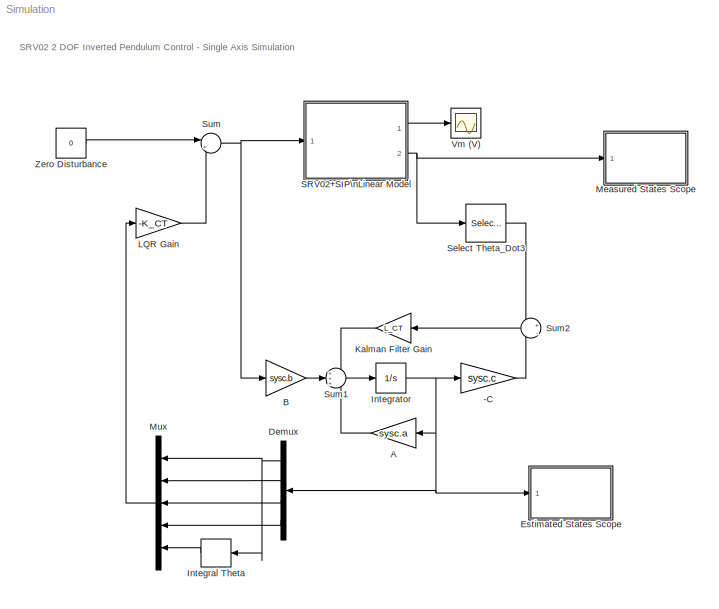
MODEL Simulation
KIND model
BLOCK [Gain] -C
  Gain = sysc.c
  Multiplication = Matrix(K*u)
  OutDataTypeStr = Inherit: Inherit via internal rule
  ParamDataTypeStr = Inherit: Inherit via internal rule
  SID = 34
  SaturateOnIntegerOverflow = off
BLOCK [Gain] A
  Gain = sysc.a
  Multiplication = Matrix(K*u)
  OutDataTypeStr = Inherit: Inherit via internal rule
  ParamDataTypeStr = Inherit: Inherit via internal rule
  SID = 35
  SaturateOnIntegerOverflow = off
BLOCK [Gain] B
  Gain = sysc.b
  Multiplication = Matrix(K*u)
  OutDataTypeStr = Inherit: Inherit via internal rule
  ParamDataTypeStr = Inherit: Inherit via internal rule
  SID = 36
  SaturateOnIntegerOverflow = off
BLOCK [Demux] Demux
  DisplayOption = bar
  Ports = [1, 4]
  SID = 242
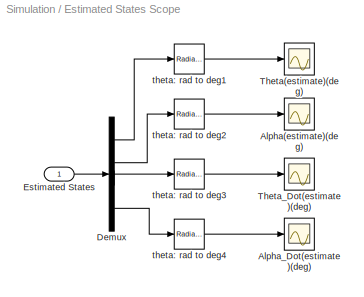
BLOCK [SubSystem] Estimated States Scope
  Ports = [1]
  RequestExecContextInheritance = off
  SID = 212
BLOCK [Scope] Estimated States Scope/Alpha(estimate)(deg)
  Floating = off
  NumInputPorts = 1
  Ports = [1]
  SID = 57
  ScopeSpecificationString = Simulink.scopes.TimeScopeBlockCfg('CurrentConfiguration', extmgr.ConfigurationSet(extmgr.Configuration('Core','General UI',true),extmgr.Configuration('Core','Source UI',true),extmgr.Configuration('Sources','WiredSimulink',true,'DataLoggingVariableName','data_alpha3','DataLoggingSaveFormat','Array','DataLoggingDecimation','1','DataLoggingDecimateData',true),extmgr.Configuration('Visuals','Time Doma...<+2647ch>
BLOCK [Scope] Estimated States Scope/Alpha_Dot(estimate)(deg)
  Floating = off
  NumInputPorts = 1
  Ports = [1]
  SID = 65
  ScopeSpecificationString = C++SS(StrPVP('Open','off'),StrPVP('TimeRange','5'),StrPVP('TickLabels','OneTimeTick'),StrPVP('LimitDataPoints','off'),StrPVP('MaxDataPoints','5000'),StrPVP('SaveToWorkspace','off'),StrPVP('SaveName','data_alpha'),StrPVP('YMin','-962986.15119'),StrPVP('YMax','8666875.3607'),StrPVP('BlockParamSampleInput','off'),StrPVP('BlockParamSampleTime','-1'),StrPVP('ZoomMode','on'),StrPVP('Grid','on'),StrPVP('...<+147ch>
BLOCK [Demux] Estimated States Scope/Demux
  DisplayOption = bar
  Ports = [1, 4]
  SID = 195
BLOCK [Inport] Estimated States Scope/Estimated States
  IconDisplay = Port number
  SID = 213
BLOCK [Scope] Estimated States Scope/Theta(estimate)(deg)
  Floating = off
  NumInputPorts = 1
  Ports = [1]
  SID = 61
  ScopeSpecificationString = Simulink.scopes.TimeScopeBlockCfg('CurrentConfiguration', extmgr.ConfigurationSet(extmgr.Configuration('Core','General UI',true),extmgr.Configuration('Core','Source UI',true),extmgr.Configuration('Sources','WiredSimulink',true,'DataLoggingVariableName','data_theta2','DataLoggingSaveFormat','Array','DataLoggingDecimation','1','DataLoggingDecimateData',true),extmgr.Configuration('Visuals','Time Doma...<+2661ch>
BLOCK [Scope] Estimated States Scope/Theta_Dot(estimate)(deg)
  Floating = off
  NumInputPorts = 1
  Ports = [1]
  SID = 60
  ScopeSpecificationString = Simulink.scopes.TimeScopeBlockCfg('CurrentConfiguration', extmgr.ConfigurationSet(extmgr.Configuration('Core','General UI',true),extmgr.Configuration('Core','Source UI',true),extmgr.Configuration('Sources','WiredSimulink',true,'DataLoggingVariableName','data_alpha4','DataLoggingSaveFormat','Array','DataLoggingDecimation','1','DataLoggingDecimateData',true),extmgr.Configuration('Visuals','Time Doma...<+2443ch>
BLOCK [Reference] Estimated States Scope/theta: rad to deg1  REF=simulink_extras/Transformations/Radians\nto Degrees
  Ports = [1, 1]
  SID = 196
  SourceBlock = simulink_extras/Transformations/Radians\nto Degrees
  SourceProductBaseCode = SL
  SourceProductName = Simulink
  SourceType = RadiansToDegrees
BLOCK [Reference] Estimated States Scope/theta: rad to deg2  REF=simulink_extras/Transformations/Radians\nto Degrees
  Ports = [1, 1]
  SID = 197
  SourceBlock = simulink_extras/Transformations/Radians\nto Degrees
  SourceProductBaseCode = SL
  SourceProductName = Simulink
  SourceType = RadiansToDegrees
BLOCK [Reference] Estimated States Scope/theta: rad to deg3  REF=simulink_extras/Transformations/Radians\nto Degrees
  Ports = [1, 1]
  SID = 198
  SourceBlock = simulink_extras/Transformations/Radians\nto Degrees
  SourceProductBaseCode = SL
  SourceProductName = Simulink
  SourceType = RadiansToDegrees
BLOCK [Reference] Estimated States Scope/theta: rad to deg4  REF=simulink_extras/Transformations/Radians\nto Degrees
  Ports = [1, 1]
  SID = 199
  SourceBlock = simulink_extras/Transformations/Radians\nto Degrees
  SourceProductBaseCode = SL
  SourceProductName = Simulink
  SourceType = RadiansToDegrees
BLOCK [DiscreteIntegrator] Integral Theta
  ICPrevOutput = DiscIntNeverNeededParam
  ICPrevScaledInput = DiscIntNeverNeededParam
  Ports = [1, 1]
  SID = 243
  SampleTime = 0.002
BLOCK [Integrator] Integrator
  Ports = [1, 1]
  SID = 94
BLOCK [Gain] Kalman Filter Gain
  Gain = L_CT
  Multiplication = Matrix(K*u)
  OutDataTypeStr = Inherit: Inherit via internal rule
  ParamDataTypeStr = Inherit: Inherit via internal rule
  SID = 38
  SaturateOnIntegerOverflow = off
BLOCK [Gain] LQR Gain
  Gain = -K_CT
  Multiplication = Matrix(K*u)
  SID = 1
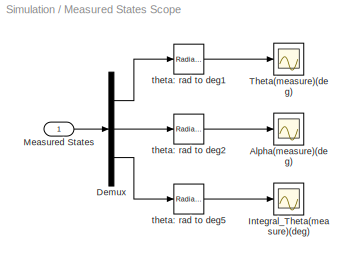
BLOCK [SubSystem] Measured States Scope
  Ports = [1]
  RequestExecContextInheritance = off
  SID = 214
BLOCK [Scope] Measured States Scope/Alpha(measure)(deg)
  Floating = off
  NumInputPorts = 1
  Ports = [1]
  SID = 218
  ScopeSpecificationString = C++SS(StrPVP('Open','off'),StrPVP('TimeRange','5'),StrPVP('TickLabels','OneTimeTick'),StrPVP('LimitDataPoints','off'),StrPVP('MaxDataPoints','5000'),StrPVP('SaveToWorkspace','off'),StrPVP('SaveName','data_alpha3'),StrPVP('YMin','0.000000211'),StrPVP('YMax','0.000000279'),StrPVP('BlockParamSampleInput','off'),StrPVP('BlockParamSampleTime','-1'),StrPVP('ZoomMode','on'),StrPVP('Grid','on'),StrPVP('Da...<+146ch>
BLOCK [Demux] Measured States Scope/Demux
  DisplayOption = bar
  Outputs = 3
  Ports = [1, 3]
  SID = 216
BLOCK [Scope] Measured States Scope/Integral_Theta(measure)(deg)
  Floating = off
  NumInputPorts = 1
  Ports = [1]
  SID = 219
  ScopeSpecificationString = C++SS(StrPVP('Open','off'),StrPVP('TimeRange','5'),StrPVP('TickLabels','OneTimeTick'),StrPVP('LimitDataPoints','off'),StrPVP('MaxDataPoints','5000'),StrPVP('SaveToWorkspace','off'),StrPVP('SaveName','data_alpha2'),StrPVP('YMin','0.18213'),StrPVP('YMax','0.24097'),StrPVP('BlockParamSampleInput','off'),StrPVP('BlockParamSampleTime','-1'),StrPVP('ZoomMode','on'),StrPVP('Grid','on'),StrPVP('DataFormat...<+139ch>
BLOCK [Inport] Measured States Scope/Measured States
  IconDisplay = Port number
  SID = 215
BLOCK [Scope] Measured States Scope/Theta(measure)(deg)
  Floating = off
  NumInputPorts = 1
  Ports = [1]
  SID = 226
  ScopeSpecificationString = C++SS(StrPVP('Open','off'),StrPVP('TimeRange','50              '),StrPVP('TickLabels','OneTimeTick'),StrPVP('LimitDataPoints','off'),StrPVP('MaxDataPoints','5000'),StrPVP('SaveToWorkspace','off'),StrPVP('SaveName','data_theta2'),StrPVP('YMin','-20.93974'),StrPVP('YMax','15.53818'),StrPVP('BlockParamSampleInput','off'),StrPVP('BlockParamSampleTime','-1'),StrPVP('ZoomMode','on'),StrPVP('Grid','on'),...<+157ch>
BLOCK [Reference] Measured States Scope/theta: rad to deg1  REF=simulink_extras/Transformations/Radians\nto Degrees
  Ports = [1, 1]
  SID = 220
  SourceBlock = simulink_extras/Transformations/Radians\nto Degrees
  SourceProductBaseCode = SL
  SourceProductName = Simulink
  SourceType = RadiansToDegrees
BLOCK [Reference] Measured States Scope/theta: rad to deg2  REF=simulink_extras/Transformations/Radians\nto Degrees
  Ports = [1, 1]
  SID = 221
  SourceBlock = simulink_extras/Transformations/Radians\nto Degrees
  SourceProductBaseCode = SL
  SourceProductName = Simulink
  SourceType = RadiansToDegrees
BLOCK [Reference] Measured States Scope/theta: rad to deg5  REF=simulink_extras/Transformations/Radians\nto Degrees
  Ports = [1, 1]
  SID = 224
  SourceBlock = simulink_extras/Transformations/Radians\nto Degrees
  SourceProductBaseCode = SL
  SourceProductName = Simulink
  SourceType = RadiansToDegrees
BLOCK [Mux] Mux
  DisplayOption = bar
  Inputs = 5
  Ports = [5, 1]
  SID = 241
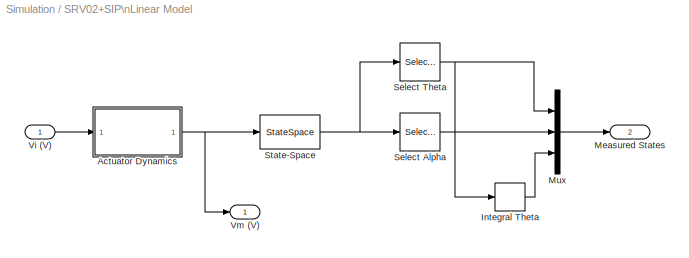
BLOCK [SubSystem] SRV02+SIP\nLinear Model
  Ports = [1, 2]
  RequestExecContextInheritance = off
  SID = 2
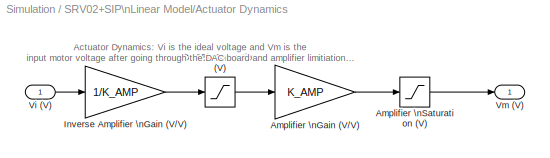
BLOCK [SubSystem] SRV02+SIP\nLinear Model/Actuator Dynamics
  Ports = [1, 1]
  RequestExecContextInheritance = off
  SID = 4
BLOCK [Gain] SRV02+SIP\nLinear Model/Actuator Dynamics/Amplifier \nGain (V//V)
  Gain = K_AMP
  OutDataTypeStr = Inherit: Inherit via internal rule
  ParamDataTypeStr = Inherit: Inherit via internal rule
  SID = 6
  SaturateOnIntegerOverflow = off
BLOCK [Saturate] SRV02+SIP\nLinear Model/Actuator Dynamics/Amplifier \nSaturation (V)
  InputPortMap = u0
  LowerLimit = -VMAX_AMP
  Ports = [1, 1]
  SID = 7
  UpperLimit = VMAX_AMP
BLOCK [Saturate] SRV02+SIP\nLinear Model/Actuator Dynamics/DACB\nSaturation (V)
  InputPortMap = u0
  LowerLimit = -VMAX_DAC
  Ports = [1, 1]
  SID = 8
  UpperLimit = VMAX_DAC
BLOCK [Gain] SRV02+SIP\nLinear Model/Actuator Dynamics/Inverse Amplifier \nGain (V//V)
  Gain = 1/K_AMP
  OutDataTypeStr = Inherit: Inherit via internal rule
  ParamDataTypeStr = Inherit: Inherit via internal rule
  SID = 9
  SaturateOnIntegerOverflow = off
BLOCK [Inport] SRV02+SIP\nLinear Model/Actuator Dynamics/Vi (V)
  IconDisplay = Port number
  SID = 5
BLOCK [Outport] SRV02+SIP\nLinear Model/Actuator Dynamics/Vm (V)
  IconDisplay = Port number
  SID = 10
BLOCK [DiscreteIntegrator] SRV02+SIP\nLinear Model/Integral Theta
  ICPrevOutput = DiscIntNeverNeededParam
  ICPrevScaledInput = DiscIntNeverNeededParam
  Ports = [1, 1]
  SID = 186
  SampleTime = 0.002
BLOCK [Outport] SRV02+SIP\nLinear Model/Measured States
  IconDisplay = Port number
  Port = 2
  SID = 17
BLOCK [Mux] SRV02+SIP\nLinear Model/Mux
  DisplayOption = bar
  Inputs = 3
  Ports = [3, 1]
  SID = 107
BLOCK [Selector] SRV02+SIP\nLinear Model/Select Alpha
  IndexOptions = Index vector (dialog)
  Indices = 2
  InputPortWidth = 2
  OutputSizes = 1
  Ports = [1, 1]
  SID = 113
BLOCK [Selector] SRV02+SIP\nLinear Model/Select Theta
  IndexOptions = Index vector (dialog)
  Indices = 1
  InputPortWidth = 2
  OutputSizes = 1
  Ports = [1, 1]
  SID = 112
BLOCK [StateSpace] SRV02+SIP\nLinear Model/State-Space
  A = Ai
  B = Bi
  C = Ci
  D = Di
  InitialCondition = pi/180*[-5, 2, 1, 1, 0.3]
  Ports = [1, 1]
  SID = 91
BLOCK [Inport] SRV02+SIP\nLinear Model/Vi (V)
  IconDisplay = Port number
  SID = 3
BLOCK [Outport] SRV02+SIP\nLinear Model/Vm (V)
  IconDisplay = Port number
  SID = 16
BLOCK [Selector] Select Theta_Dot3
  IndexOptions = Index vector (dialog)
  Indices = [1 2]
  InputPortWidth = 3
  OutputSizes = 1
  Ports = [1, 1]
  SID = 231
BLOCK [Sum] Sum
  IconShape = round
  InputSameDT = off
  Inputs = |++
  OutDataTypeStr = Inherit: Inherit via internal rule
  Ports = [2, 1]
  SID = 31
  SaturateOnIntegerOverflow = off
BLOCK [Sum] Sum1
  IconShape = round
  InputSameDT = off
  Inputs = +++
  OutDataTypeStr = Inherit: Inherit via internal rule
  Ports = [3, 1]
  SID = 42
  SaturateOnIntegerOverflow = off
BLOCK [Sum] Sum2
  IconShape = round
  InputSameDT = off
  Inputs = +|-
  OutDataTypeStr = Inherit: Inherit via internal rule
  Ports = [2, 1]
  SID = 43
  SaturateOnIntegerOverflow = off
BLOCK [Scope] Vm (V)
  Floating = off
  NumInputPorts = 1
  Ports = [1]
  SID = 227
  ScopeSpecificationString = Simulink.scopes.TimeScopeBlockCfg('CurrentConfiguration', extmgr.ConfigurationSet(extmgr.Configuration('Core','General UI',true),extmgr.Configuration('Core','Source UI',true),extmgr.Configuration('Sources','WiredSimulink',true,'DataLoggingVariableName','data_vm','DataLoggingSaveFormat','Array','DataLoggingDecimation','1','DataLoggingDecimateData',true),extmgr.Configuration('Visuals','Time Domain',...<+1740ch>
BLOCK [Constant] Zero Disturbance
  SID = 174
  Value = 0
ANNOTATION (root): SRV02 2 DOF Inverted Pendulum Control - Single Axis Simulation
ANNOTATION SRV02+SIP\nLinear Model/Actuator Dynamics: Actuator Dynamics: Vi is the ideal voltage and Vm is the \ninput motor voltage after going through the DAC board and amplifier limitiations.
LINE -C:1 -> Sum2:2
LINE A:1 -> Sum1:3
LINE B:1 -> Sum1:2
NET Demux:1 -> Integral Theta:1, Mux:1
LINE Demux:2 -> Mux:2
LINE Demux:3 -> Mux:3
LINE Demux:4 -> Mux:4
LINE Estimated States Scope/Demux:1 -> Estimated States Scope/theta: rad to deg1:1
LINE Estimated States Scope/Demux:2 -> Estimated States Scope/theta: rad to deg2:1
LINE Estimated States Scope/Demux:3 -> Estimated States Scope/theta: rad to deg3:1
LINE Estimated States Scope/Demux:4 -> Estimated States Scope/theta: rad to deg4:1
LINE Estimated States Scope/Estimated States:1 -> Estimated States Scope/Demux:1
LINE Estimated States Scope/theta: rad to deg1:1 -> Estimated States Scope/Theta(estimate)(deg):1
LINE Estimated States Scope/theta: rad to deg2:1 -> Estimated States Scope/Alpha(estimate)(deg):1
LINE Estimated States Scope/theta: rad to deg3:1 -> Estimated States Scope/Theta_Dot(estimate)(deg):1
LINE Estimated States Scope/theta: rad to deg4:1 -> Estimated States Scope/Alpha_Dot(estimate)(deg):1
LINE Integral Theta:1 -> Mux:5
NET Integrator:1 -> -C:1, A:1, Demux:1, Estimated States Scope:1
LINE Kalman Filter Gain:1 -> Sum1:1
LINE LQR Gain:1 -> Sum:2
LINE Measured States Scope/Demux:1 -> Measured States Scope/theta: rad to deg1:1
LINE Measured States Scope/Demux:2 -> Measured States Scope/theta: rad to deg2:1
LINE Measured States Scope/Demux:3 -> Measured States Scope/theta: rad to deg5:1
LINE Measured States Scope/Measured States:1 -> Measured States Scope/Demux:1
LINE Measured States Scope/theta: rad to deg1:1 -> Measured States Scope/Theta(measure)(deg):1
LINE Measured States Scope/theta: rad to deg2:1 -> Measured States Scope/Alpha(measure)(deg):1
LINE Measured States Scope/theta: rad to deg5:1 -> Measured States Scope/Integral_Theta(measure)(deg):1
LINE Mux:1 -> LQR Gain:1
LINE SRV02+SIP\nLinear Model/Actuator Dynamics/Amplifier \nGain (V//V):1 -> SRV02+SIP\nLinear Model/Actuator Dynamics/Amplifier \nSaturation (V):1
LINE SRV02+SIP\nLinear Model/Actuator Dynamics/Amplifier \nSaturation (V):1 -> SRV02+SIP\nLinear Model/Actuator Dynamics/Vm (V):1
LINE SRV02+SIP\nLinear Model/Actuator Dynamics/DACB\nSaturation (V):1 -> SRV02+SIP\nLinear Model/Actuator Dynamics/Amplifier \nGain (V//V):1
LINE SRV02+SIP\nLinear Model/Actuator Dynamics/Inverse Amplifier \nGain (V//V):1 -> SRV02+SIP\nLinear Model/Actuator Dynamics/DACB\nSaturation (V):1
LINE SRV02+SIP\nLinear Model/Actuator Dynamics/Vi (V):1 -> SRV02+SIP\nLinear Model/Actuator Dynamics/Inverse Amplifier \nGain (V//V):1
NET SRV02+SIP\nLinear Model/Actuator Dynamics:1 -> SRV02+SIP\nLinear Model/State-Space:1, SRV02+SIP\nLinear Model/Vm (V):1
LINE SRV02+SIP\nLinear Model/Integral Theta:1 -> SRV02+SIP\nLinear Model/Mux:3
LINE SRV02+SIP\nLinear Model/Mux:1 -> SRV02+SIP\nLinear Model/Measured States:1
LINE SRV02+SIP\nLinear Model/Select Alpha:1 -> SRV02+SIP\nLinear Model/Mux:2
NET SRV02+SIP\nLinear Model/Select Theta:1 -> SRV02+SIP\nLinear Model/Integral Theta:1, SRV02+SIP\nLinear Model/Mux:1
NET SRV02+SIP\nLinear Model/State-Space:1 -> SRV02+SIP\nLinear Model/Select Alpha:1, SRV02+SIP\nLinear Model/Select Theta:1
LINE SRV02+SIP\nLinear Model/Vi (V):1 -> SRV02+SIP\nLinear Model/Actuator Dynamics:1
LINE SRV02+SIP\nLinear Model:1 -> Vm (V):1
NET SRV02+SIP\nLinear Model:2 -> Measured States Scope:1, Select Theta_Dot3:1
LINE Select Theta_Dot3:1 -> Sum2:1
LINE Sum1:1 -> Integrator:1
LINE Sum2:1 -> Kalman Filter Gain:1
NET Sum:1 -> B:1, SRV02+SIP\nLinear Model:1
LINE Zero Disturbance:1 -> Sum:1
note: NET lines group one-source signal fan-out (src -> all destinations, sorted); 1:1 wires keep LINE
